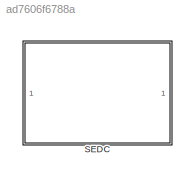
MODEL slx_ad7606f6788a
KIND model
CONFIG AbsTol = auto
CONFIG EnableMultiTasking = off
CONFIG FixedStep = auto
CONFIG MaxStep = 1e-3
CONFIG MinStep = auto
CONFIG RelTol = 1e-3
CONFIG SampleTimeConstraint = Unconstrained
CONFIG SolverName = VariableStepAuto
CONFIG StartTime = 0.0
CONFIG StopTime = 10.0
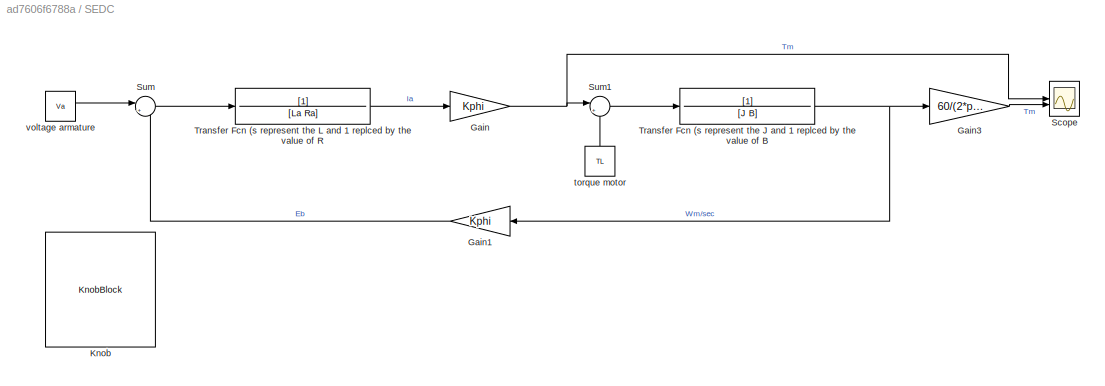
BLOCK [SubSystem] SEDC
BLOCK [Gain] SEDC/Gain
  Gain = Kphi
BLOCK [Gain] SEDC/Gain1
  Gain = Kphi
BLOCK [Gain] SEDC/Gain3
  Gain = 60/(2*pi)
BLOCK [KnobBlock] SEDC/Knob
  ScaleMax = 240
BLOCK [Scope] SEDC/Scope
  Floating = off
  NumInputPorts = 2
  ScopeSpecificationString = Simulink.scopes.TimeScopeBlockCfg('CurrentConfiguration', extmgr.ConfigurationSet(extmgr.Configuration('Core','General UI',true),extmgr.Configuration('Core','Source UI',true),extmgr.Configuration('Sources','WiredSimulink',true),extmgr.Configuration('Visuals','Time Domain',true,'SerializedDisplays',{struct('MinYLimReal','-73.53315','MaxYLimReal','661.79836','YLabelReal','','MinYLimMag','0.00000','M...<+1982ch>
BLOCK [Sum] SEDC/Sum
  Inputs = |+-
BLOCK [Sum] SEDC/Sum1
  Inputs = |+-
BLOCK [TransferFcn] SEDC/Transfer Fcn (s represent the J and 1 replced by the value of B
  Denominator = [J B]
BLOCK [TransferFcn] SEDC/Transfer Fcn (s represent the L and 1 replced by the value of R
  Denominator = [La Ra]
BLOCK [Constant] SEDC/torque motor
  NameLocation = right
  Value = TL
BLOCK [Constant] SEDC/voltage armature 
  Value = Va
LINE SEDC/Gain1:1 -> SEDC/Sum:2
LINE SEDC/Gain3:1 -> SEDC/Scope:2
NET SEDC/Gain:1 -> SEDC/Scope:1, SEDC/Sum1:1
LINE SEDC/Sum1:1 -> SEDC/Transfer Fcn (s represent the J and 1 replced by the value of B:1
LINE SEDC/Sum:1 -> SEDC/Transfer Fcn (s represent the L and 1 replced by the value of R:1
NET SEDC/Transfer Fcn (s represent the J and 1 replced by the value of B:1 -> SEDC/Gain1:1, SEDC/Gain3:1
LINE SEDC/Transfer Fcn (s represent the L and 1 replced by the value of R:1 -> SEDC/Gain:1
LINE SEDC/torque motor:1 -> SEDC/Sum1:2
LINE SEDC/voltage armature :1 -> SEDC/Sum:1
note: NET lines group one-source signal fan-out (src -> all destinations, sorted); 1:1 wires keep LINE
